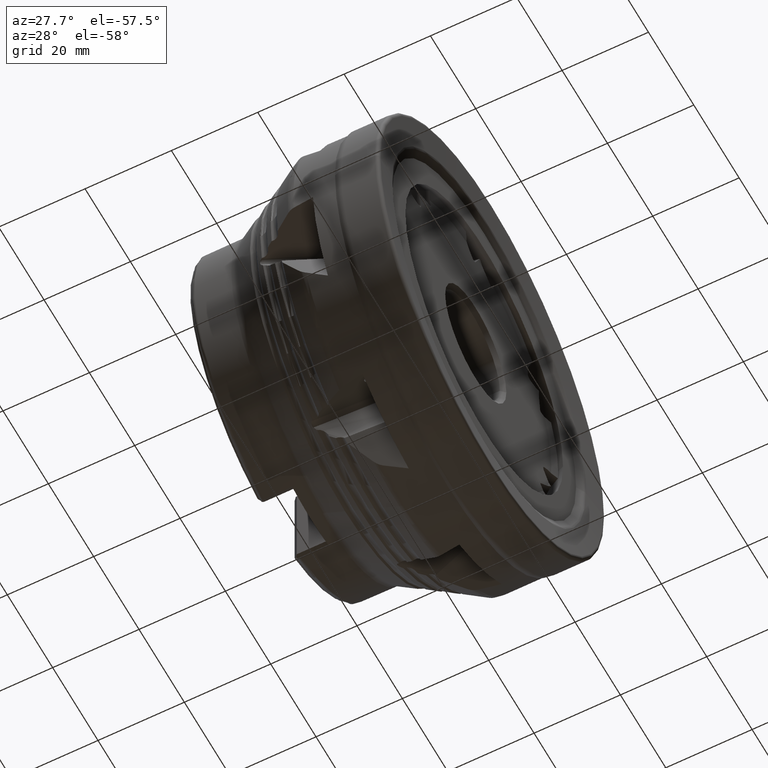
[diagram: clean part render]
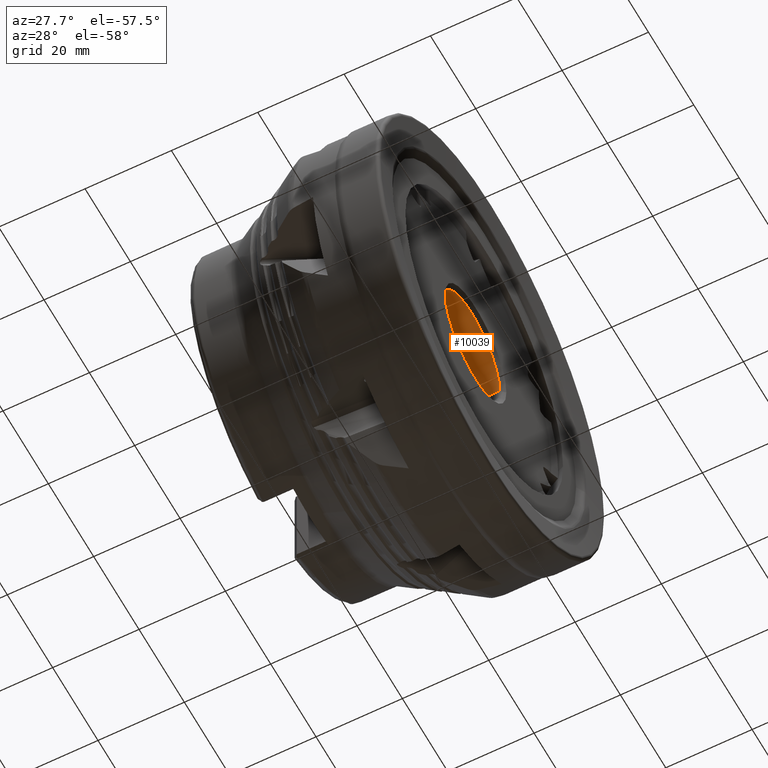
[diagram: same view with one face highlighted and labeled with its STEP entity id]
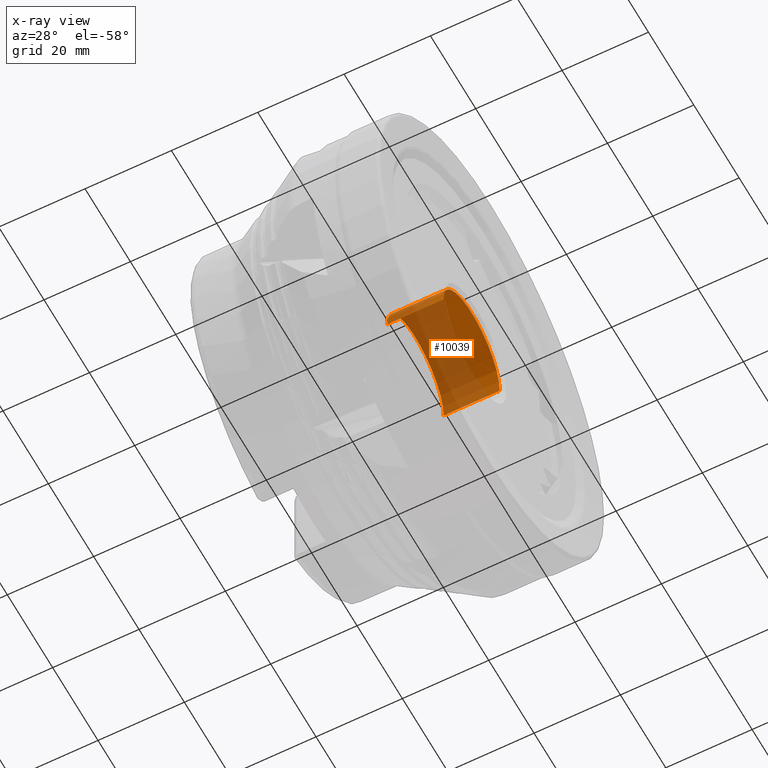
[diagram: x-ray of the same camera — body ghosted, the highlighted face saturated]
A machine part, auxiliary view. The second image highlights one B-rep face of the part: STEP entity #10039.
The next image is the same camera in x-ray: the body ghosted, the highlighted face saturated — about 63% of this face is hidden behind the body in this view.
In plain terms, the highlighted cylindrical surface (partial cylindrical patch) has radius 12.5 mm, axis along (1, 0, -0).
Its self-contained STEP definition (entity closure, byte-faithful):
#681 = CARTESIAN_POINT ( 'NONE',  ( -16.00000000000000000, -1.959370166115803600E-015, 0.0000000000000000000 ) ) ;
#687 = DIRECTION ( 'NONE',  ( 1.000000000000000000, 1.224606353822377300E-016, -0.0000000000000000000 ) ) ;
#688 = DIRECTION ( 'NONE',  ( 0.0000000000000000000, 1.000000000000000000, 0.0000000000000000000 ) ) ;
#700 = CARTESIAN_POINT ( 'NONE',  ( -2.999999999999995600, -3.673819061467126400E-016, 0.0000000000000000000 ) ) ;
#790 = AXIS2_PLACEMENT_3D ( 'NONE', #681, #687, #688 ) ;
#794 = AXIS2_PLACEMENT_3D ( 'NONE', #700, #1904, #1905 ) ;
#1063 = CIRCLE ( 'NONE', #790, 12.50000000000000000 ) ;
#1072 = CIRCLE ( 'NONE', #794, 12.50000000000000000 ) ;
#1749 = VECTOR ( 'NONE', #6642, 1000.000000000000000 ) ;
#1757 = VECTOR ( 'NONE', #6637, 1000.000000000000000 ) ;
#1760 = LINE ( 'NONE', #6641, #1749 ) ;
#1761 = LINE ( 'NONE', #6628, #1757 ) ;
#1904 = DIRECTION ( 'NONE',  ( 1.000000000000000000, 1.224606353822377300E-016, -0.0000000000000000000 ) ) ;
#1905 = DIRECTION ( 'NONE',  ( -1.387778780781445700E-016, 1.000000000000000000, 0.0000000000000000000 ) ) ;
#2916 = CARTESIAN_POINT ( 'NONE',  ( -16.00000000000000000, 12.49999999999999800, 0.0000000000000000000 ) ) ;
#2917 = CARTESIAN_POINT ( 'NONE',  ( -2.999999999999993800, -12.50000000000000000, 1.530808498934191500E-015 ) ) ;
#2919 = CARTESIAN_POINT ( 'NONE',  ( -2.999999999999997300, 12.50000000000000000, 0.0000000000000000000 ) ) ;
#2944 = CARTESIAN_POINT ( 'NONE',  ( -16.00000000000000000, -12.50000000000000400, 1.530808498934191900E-015 ) ) ;
#6628 = CARTESIAN_POINT ( 'NONE',  ( 1.530757942277971600E-015, -12.50000000000000000, 1.530808498934191500E-015 ) ) ;
#6637 = DIRECTION ( 'NONE',  ( 1.000000000000000000, 1.224606353822377300E-016, -0.0000000000000000000 ) ) ;
#6641 = CARTESIAN_POINT ( 'NONE',  ( -1.530757942277971600E-015, 12.50000000000000000, 0.0000000000000000000 ) ) ;
#6642 = DIRECTION ( 'NONE',  ( 1.000000000000000000, 1.224606353822377300E-016, -0.0000000000000000000 ) ) ;
#9186 = ORIENTED_EDGE ( 'NONE', *, *, #13368, .F. ) ;
#9208 = ORIENTED_EDGE ( 'NONE', *, *, #13370, .T. ) ;
#9252 = ORIENTED_EDGE ( 'NONE', *, *, #10381, .T. ) ;
#9352 = ORIENTED_EDGE ( 'NONE', *, *, #10375, .F. ) ;
#10039 = ADVANCED_FACE ( 'NONE', ( #14571 ), #14572, .F. ) ;
#10375 = EDGE_CURVE ( 'NONE', #10700, #10728, #1063, .T. ) ;
#10381 = EDGE_CURVE ( 'NONE', #10703, #10701, #1072, .T. ) ;
#10700 = VERTEX_POINT ( 'NONE', #2916 ) ;
#10701 = VERTEX_POINT ( 'NONE', #2917 ) ;
#10703 = VERTEX_POINT ( 'NONE', #2919 ) ;
#10728 = VERTEX_POINT ( 'NONE', #2944 ) ;
#12237 = EDGE_LOOP ( 'NONE', ( #9186, #9352, #9208, #9252 ) ) ;
#13368 = EDGE_CURVE ( 'NONE', #10728, #10701, #1761, .T. ) ;
#13370 = EDGE_CURVE ( 'NONE', #10700, #10703, #1760, .T. ) ;
#14571 = FACE_OUTER_BOUND ( 'NONE', #12237, .T. ) ;
#14572 = CYLINDRICAL_SURFACE ( 'NONE', #16330, 12.50000000000000000 ) ;
#16330 = AXIS2_PLACEMENT_3D ( 'NONE', #16803, #16797, #16777 ) ;
#16777 = DIRECTION ( 'NONE',  ( -1.224606353822377300E-016, 1.000000000000000000, 0.0000000000000000000 ) ) ;
#16797 = DIRECTION ( 'NONE',  ( 1.000000000000000000, 1.224606353822377300E-016, -0.0000000000000000000 ) ) ;
#16803 = CARTESIAN_POINT ( 'NONE',  ( 0.0000000000000000000, 0.0000000000000000000, 0.0000000000000000000 ) ) ;